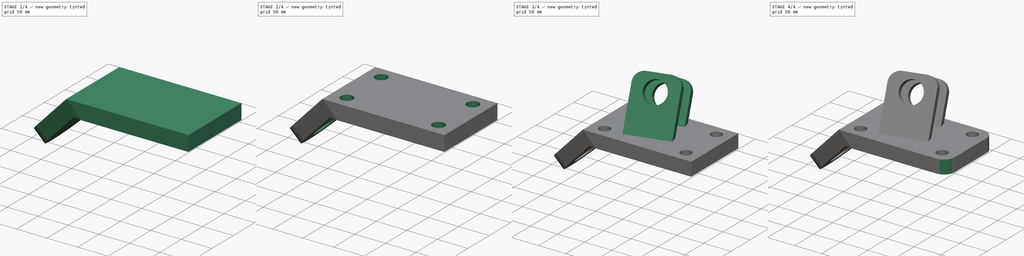
[diagram: build sequence overview — one tinted view per stage of 4, left to right]
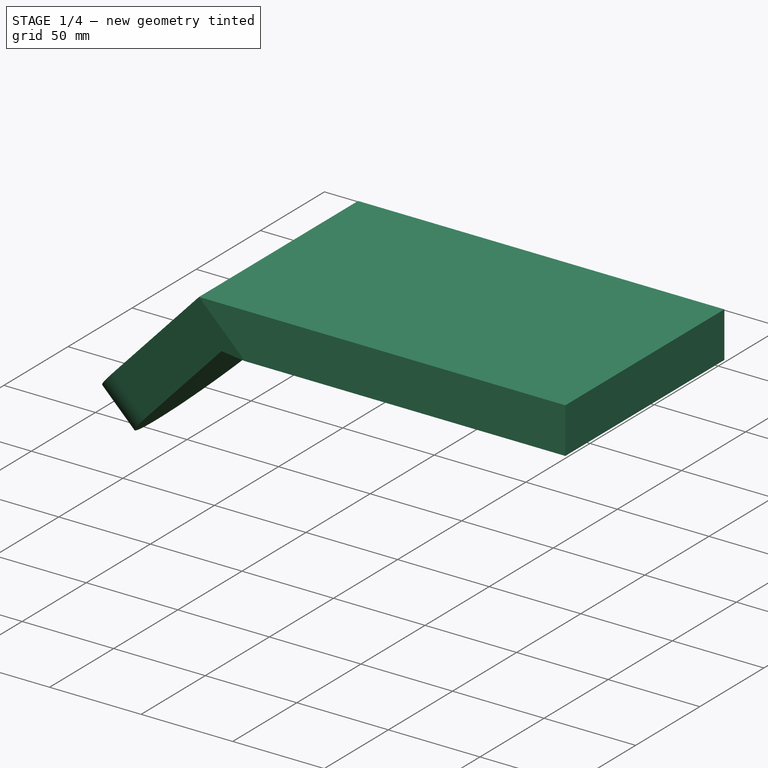
[diagram: stage 1 of 4 — iso view after this stage's code; geometry added in this stage tinted green]
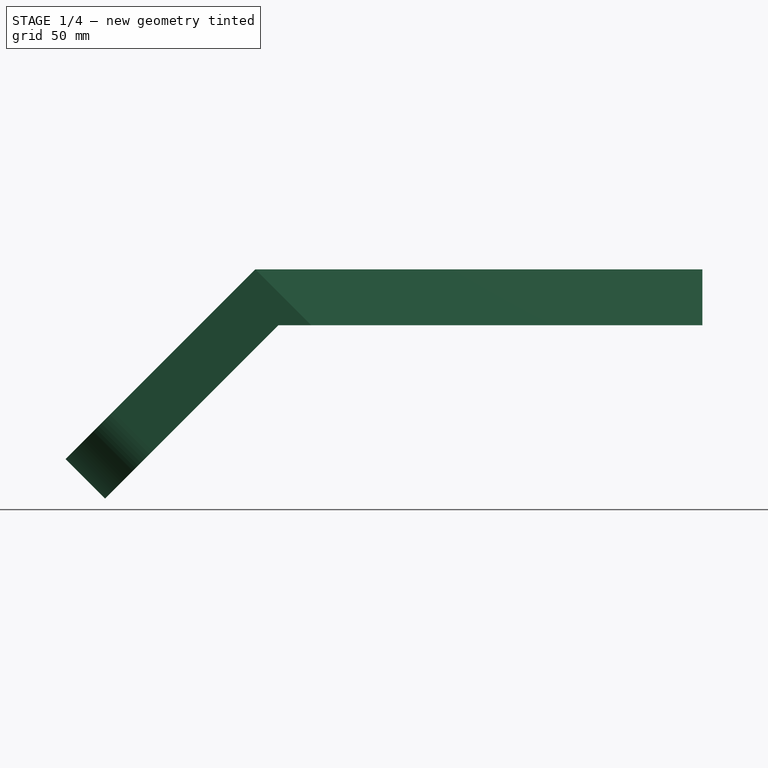
[diagram: stage 1 of 4 — front view after this stage's code; geometry added in this stage tinted green]
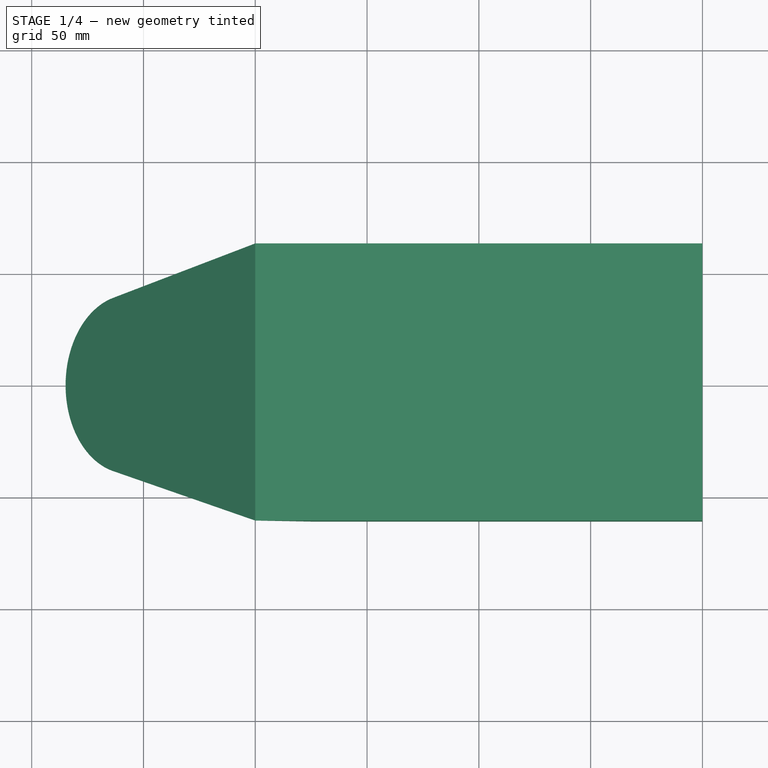
[diagram: stage 1 of 4 — top view after this stage's code; geometry added in this stage tinted green]
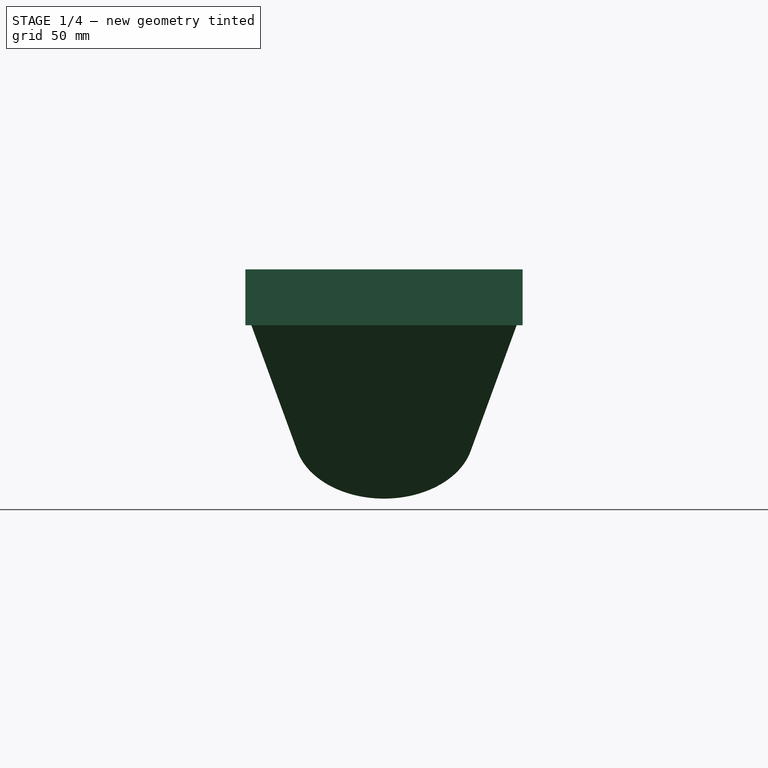
[diagram: stage 1 of 4 — right view after this stage's code; geometry added in this stage tinted green]
FCSTD DOCUMENT  (FreeCAD 0.17R9652 (Git))
Label: Advanced
License: All rights reserved
LicenseURL: http://en.wikipedia.org/wiki/All_rights_reserved
objects: Sketcher::SketchObject×8, PartDesign::Pocket×6, PartDesign::Plane×3, PartDesign::Pad×2, PartDesign::ShapeBinder×1, PartDesign::Fillet×1, PartDesign::Body×1
note: 30 computed .brp shape members not serialized (recipe doc carries the construction recipe); baked Part::Feature solids carry a one-line shape summary decoded from their .brp

FEATURE [Sketcher::SketchObject] Sketch
  MapMode = 5
  Placement = pos=(0,0,0) rot=(1,0,0;1.5708rad)
  Support = -> [XZ_Plane]
  sketch-geometry (7):
    g0: LineSegment StartX=0 StartY=0 StartZ=0 EndX=200 EndY=0 EndZ=0
    g1: LineSegment StartX=200 StartY=0 StartZ=0 EndX=200 EndY=-25 EndZ=0
    g2: LineSegment StartX=200 StartY=-25 StartZ=0 EndX=10.3553 EndY=-25 EndZ=0
    g3: LineSegment StartX=0 StartY=0 StartZ=0 EndX=-84.8528 EndY=-84.8528 EndZ=0
    g4: LineSegment StartX=-84.8528 StartY=-84.8528 StartZ=0 EndX=-67.1751 EndY=-102.53 EndZ=0
    g5: LineSegment StartX=-67.1751 StartY=-102.53 StartZ=0 EndX=10.3553 EndY=-25 EndZ=0
    g6: LineSegment [constr] StartX=0 StartY=0 StartZ=0 EndX=10.3553 EndY=-25 EndZ=0
  constraints (20):
    c: Coincident(g0,g1)
    c: Coincident(g1,g2)
    c: Horizontal(g0)
    c: Horizontal(g2)
    c: Vertical(g1)
    c: Coincident(g0,g3)
    c: Coincident(g3,g4)
    c: Coincident(g4,g5)
    c: Coincident(g5,g2)
    c: Distance(g3) = 120
    c: Perpendicular(g4,g5)
    c: Parallel(g5,g3)
    c: Coincident(g6,g2)
    c: Coincident(g0,g6)
    c: PointOnObject(g0,g-2)
    c: DistanceX(g0,g0) = 200
    c: Angle(g3,g0) = 2.35619
    c: DistanceY(g1,g1) = 25
    c: Distance(g4) = 25
    c: PointOnObject(g0,g-1)
FEATURE [PartDesign::Pad] Pad
  Length = 124
  Length2 = 100
  Midplane = true
  Placement = pos=(0,0,0) rot=(1,0,0;1.5708rad)
  Profile = -> Sketch
  Type = 0
  expr: Length = 80 + 22 * 2
FEATURE [PartDesign::Plane] DatumPlane
  MapMode = 5
  Placement = pos=(0,0,0) rot=(0,-1,0;0.785398rad)
  Support = -> [XY_Plane]
  superPlacement = pos=(0,0,0) rot=(0,-1,0;0.785398rad)
FEATURE [Sketcher::SketchObject] Sketch001
  MapMode = 5
  Placement = pos=(0,0,0) rot=(0,-1,0;0.785398rad)
  Support = -> [DatumPlane]
  sketch-geometry (7):
    g0: LineSegment StartX=-130 StartY=62 StartZ=0 EndX=0 EndY=62 EndZ=0
    g1: LineSegment [constr] StartX=0 StartY=62 StartZ=0 EndX=0 EndY=-62 EndZ=0
    g2: LineSegment StartX=0 StartY=-62 StartZ=0 EndX=-130 EndY=-62 EndZ=0
    g3: LineSegment StartX=-130 StartY=-62 StartZ=0 EndX=-130 EndY=62 EndZ=0
    g4: LineSegment StartX=0 StartY=62 StartZ=0 EndX=-90.0131 EndY=38.7265 EndZ=0
    g5: LineSegment StartX=0 StartY=-62 StartZ=0 EndX=-90.0131 EndY=-38.7265 EndZ=0
    g6: ArcOfCircle CenterX=-80 CenterY=0 CenterZ=0 NormalX=0 NormalY=0 NormalZ=1 Radius=40 StartAngle=1.82381 EndAngle=4.45937
  constraints (21):
    c: Coincident(g0,g1)
    c: Coincident(g1,g2)
    c: Coincident(g2,g3)
    c: Coincident(g3,g0)
    c: Horizontal(g0)
    c: Horizontal(g2)
    c: Vertical(g1)
    c: Vertical(g3)
    c: PointOnObject(g1,g-2)
    c: Symmetric(g0,g1,g-1)
    c: DistanceY(g3,g3) = 124
    c: DistanceX(g0,g0) = 130
    c: Coincident(g4,g0)
    c: Coincident(g5,g1)
    c: PointOnObject(g6,g-1)
    c: Coincident(g4,g6)
    c: Coincident(g5,g6)
    c: Tangent(g5,g6)
    c: Tangent(g4,g6)
    c: DistanceX(g6,g-1) = 80
    c: Radius(g6) = 40
FEATURE [PartDesign::Pocket] Pocket
  BaseFeature = -> Pad
  Length = 44
  Placement = pos=(0,0,0) rot=(1,0,0;1.5708rad)
  Profile = -> Sketch001
  Type = 1
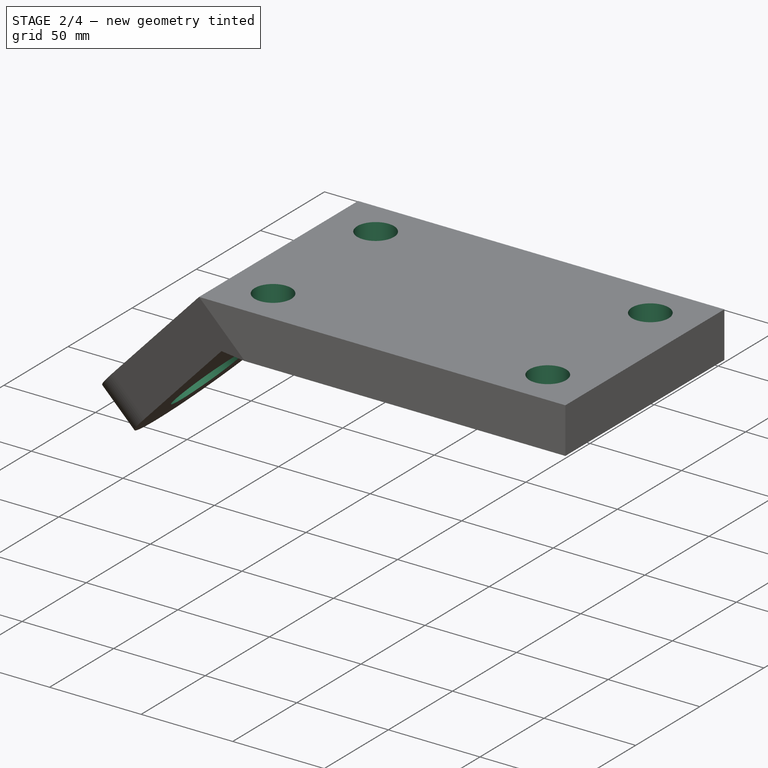
[diagram: stage 2 of 4 — iso view after this stage's code; geometry added in this stage tinted green]
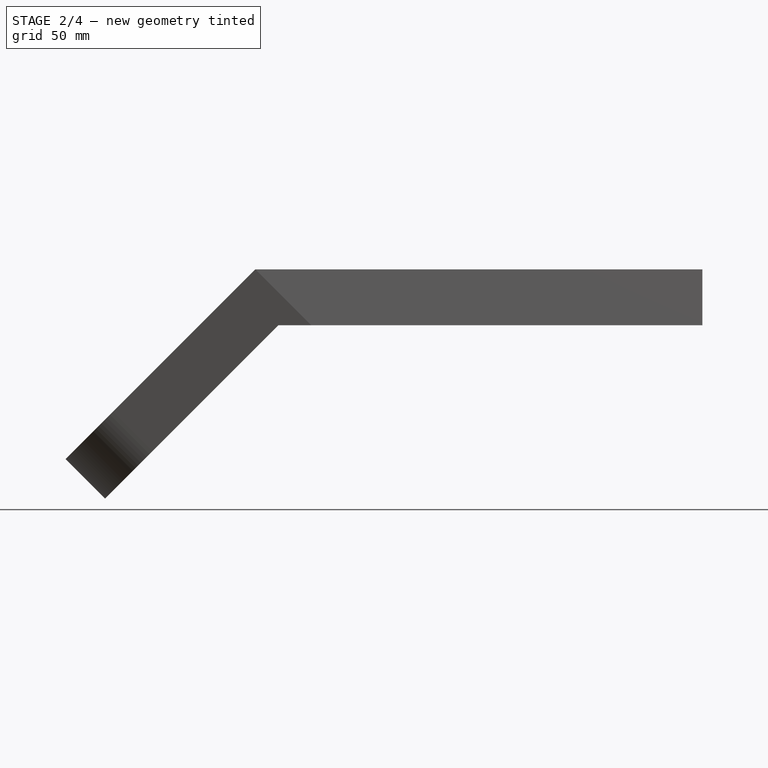
[diagram: stage 2 of 4 — front view after this stage's code; geometry added in this stage tinted green]
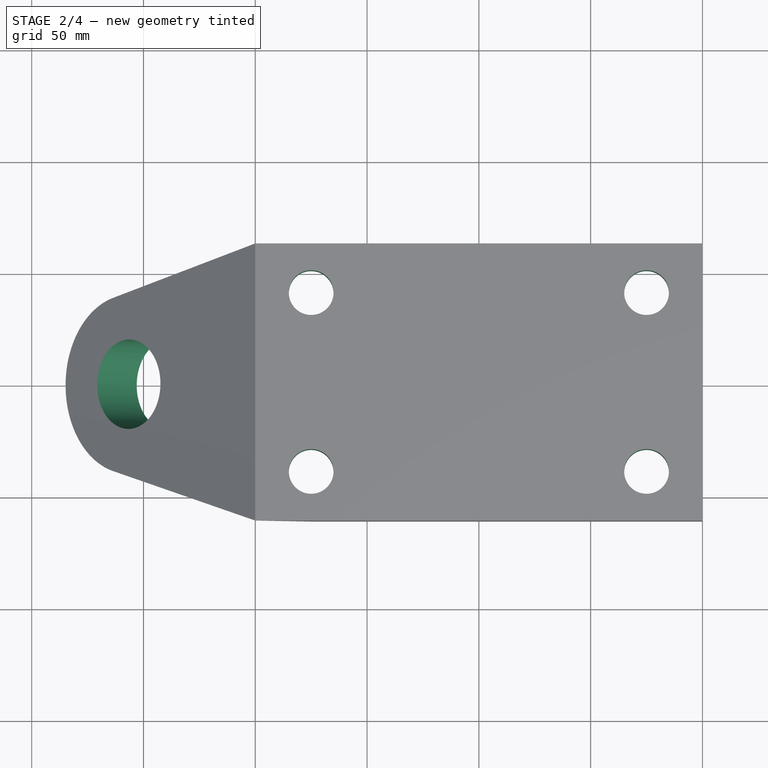
[diagram: stage 2 of 4 — top view after this stage's code; geometry added in this stage tinted green]
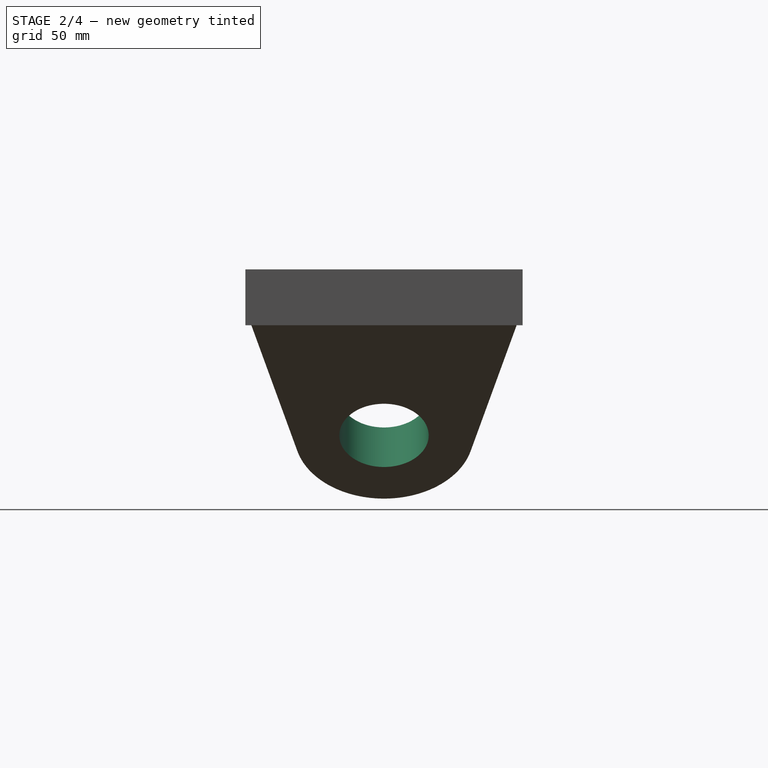
[diagram: stage 2 of 4 — right view after this stage's code; geometry added in this stage tinted green]
FEATURE [Sketcher::SketchObject] Sketch002
  MapMode = 5
  Placement = pos=(0,0,0) rot=(0,-1,0;0.785398rad)
  Support = -> [DatumPlane]
  sketch-geometry (1):
    g0: Circle CenterX=-80 CenterY=0 CenterZ=0 NormalX=0 NormalY=0 NormalZ=1 Radius=20
  constraints (3):
    c: PointOnObject(g0,g-1)
    c: DistanceX(g0,g-1) = 80
    c: Radius(g0) = 20
FEATURE [PartDesign::Pocket] Pocket001
  BaseFeature = -> Pocket
  Length = 5
  Placement = pos=(0,0,0) rot=(1,0,0;1.5708rad)
  Profile = -> Sketch002
  Type = 1
FEATURE [Sketcher::SketchObject] Sketch003
  MapMode = 5
  Support = -> [XY_Plane]
  sketch-geometry (8):
    g0: LineSegment [constr] StartX=25 StartY=40 StartZ=0 EndX=175 EndY=40 EndZ=0
    g1: LineSegment [constr] StartX=175 StartY=40 StartZ=0 EndX=175 EndY=-40 EndZ=0
    g2: LineSegment [constr] StartX=175 StartY=-40 StartZ=0 EndX=25 EndY=-40 EndZ=0
    g3: LineSegment [constr] StartX=25 StartY=-40 StartZ=0 EndX=25 EndY=40 EndZ=0
    g4: Circle CenterX=25 CenterY=40 CenterZ=0 NormalX=0 NormalY=0 NormalZ=1 Radius=10
    g5: Circle CenterX=175 CenterY=40 CenterZ=0 NormalX=0 NormalY=0 NormalZ=1 Radius=10
    g6: Circle CenterX=175 CenterY=-40 CenterZ=0 NormalX=0 NormalY=0 NormalZ=1 Radius=10
    g7: Circle CenterX=25 CenterY=-40 CenterZ=0 NormalX=0 NormalY=0 NormalZ=1 Radius=10
  constraints (20):
    c: Coincident(g0,g1)
    c: Coincident(g1,g2)
    c: Coincident(g2,g3)
    c: Coincident(g3,g0)
    c: Horizontal(g0)
    c: Horizontal(g2)
    c: Vertical(g1)
    c: Vertical(g3)
    c: DistanceY(g1,g1) = 80
    c: Symmetric(g0,g1,g-1)
    c: DistanceX(g0,g0) = 150
    c: DistanceX(g0) = 25
    c: Coincident(g2,g7)
    c: Coincident(g0,g4)
    c: Coincident(g0,g5)
    c: Coincident(g6,g1)
    c: Equal(g6,g5)
    c: Equal(g5,g4)
    c: Equal(g4,g7)
    c: Radius(g4) = 10
FEATURE [PartDesign::Pocket] Pocket002
  BaseFeature = -> Pocket001
  Length = 5
  Midplane = true
  Placement = pos=(0,0,0) rot=(1,0,0;1.5708rad)
  Profile = -> Sketch003
  Type = 1
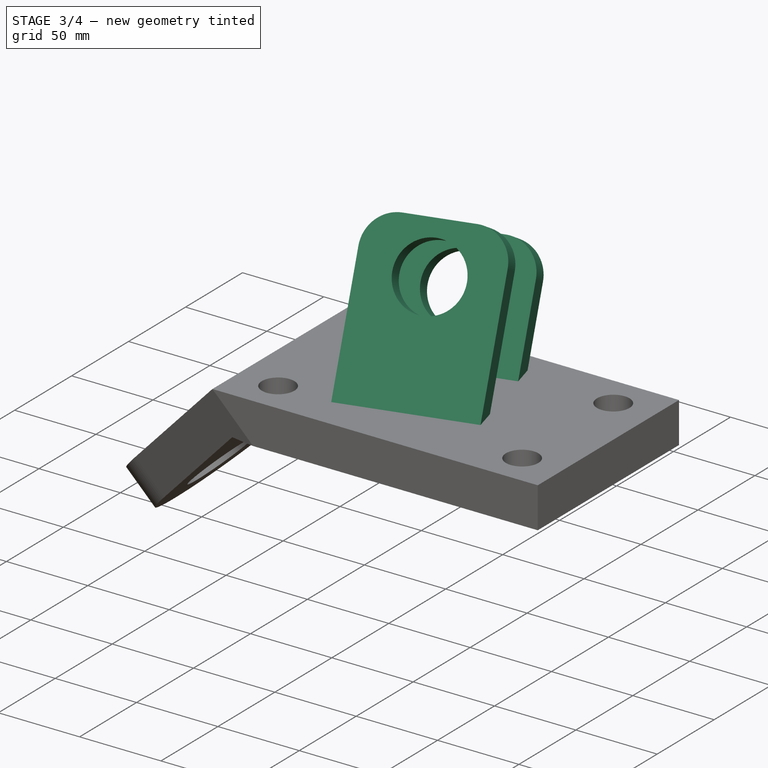
[diagram: stage 3 of 4 — iso view after this stage's code; geometry added in this stage tinted green]
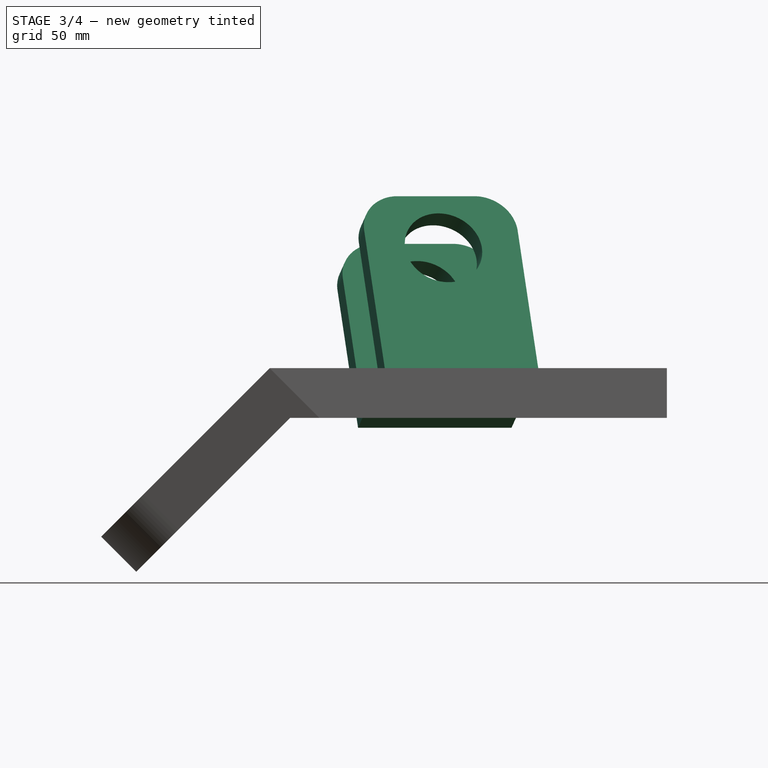
[diagram: stage 3 of 4 — front view after this stage's code; geometry added in this stage tinted green]
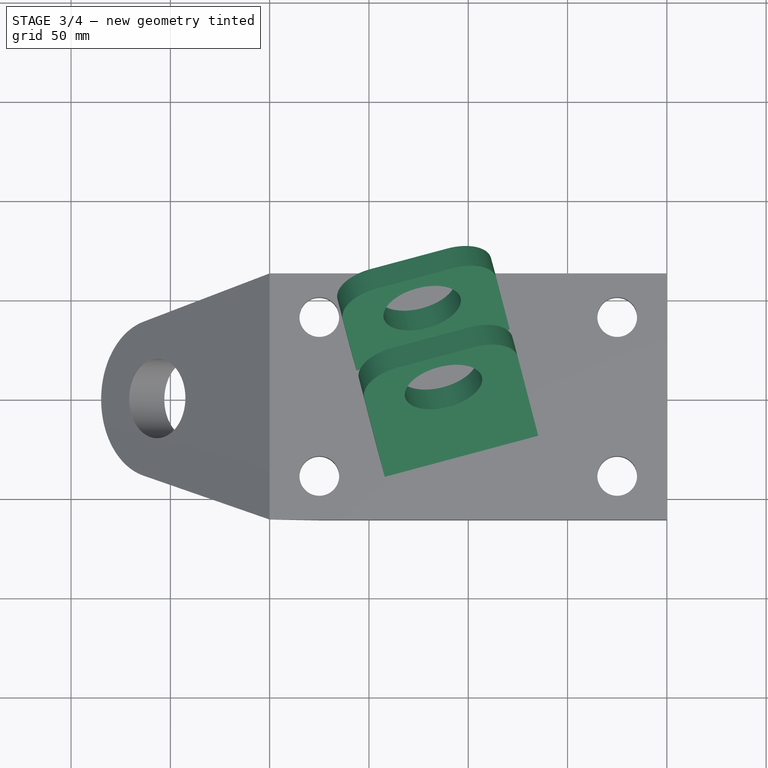
[diagram: stage 3 of 4 — top view after this stage's code; geometry added in this stage tinted green]
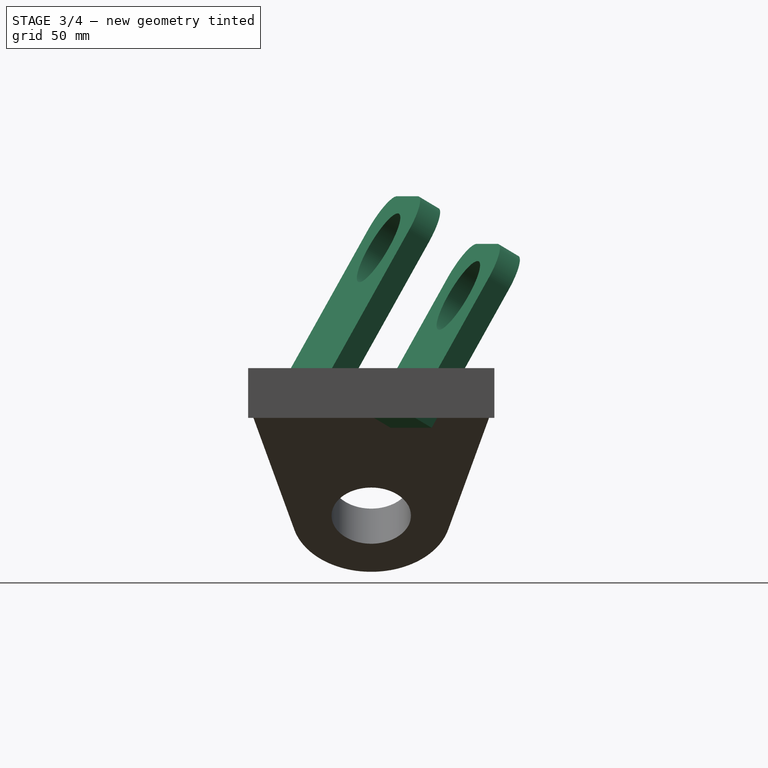
[diagram: stage 3 of 4 — right view after this stage's code; geometry added in this stage tinted green]
FEATURE [PartDesign::Plane] DatumPlane001
  MapMode = 5
  Placement = pos=(0,-56,0) rot=(0.96704,0.127313,0.220513;1.07646rad)
  Support = -> [XZ_Plane]
  superPlacement = pos=(0,0,56) rot=(-0.891316,0.437934,0.117344;0.584055rad)
FEATURE [Sketcher::SketchObject] Sketch004
  MapMode = 5
  Placement = pos=(0,-56,0) rot=(0.96704,0.127313,0.220513;1.07646rad)
  Support = -> [DatumPlane001]
  sketch-geometry (7):
    g0: LineSegment StartX=140 StartY=79.9999 StartZ=0 EndX=140 EndY=0 EndZ=0
    g1: LineSegment StartX=140 StartY=0 StartZ=0 EndX=60 EndY=0 EndZ=0
    g2: LineSegment StartX=60 StartY=0 StartZ=0 EndX=60 EndY=80 EndZ=0
    g3: LineSegment [constr] StartX=0 StartY=0 StartZ=0 EndX=200 EndY=0 EndZ=0
    g4: LineSegment StartX=80 StartY=100 StartZ=0 EndX=120 EndY=100 EndZ=0
    g5: ArcOfCircle CenterX=80 CenterY=80 CenterZ=0 NormalX=0 NormalY=0 NormalZ=1 Radius=20 StartAngle=1.5708 EndAngle=3.14159
    g6: ArcOfCircle CenterX=120 CenterY=80 CenterZ=0 NormalX=0 NormalY=0 NormalZ=1 Radius=20 StartAngle=6.28318 EndAngle=7.85398
  constraints (23):
    c: Coincident(g0,g1)
    c: Coincident(g1,g2)
    c: Horizontal(g1)
    c: Vertical(g0)
    c: Vertical(g2)
    c: Coincident(g3,g-1)
    c: Horizontal(g3)
    c: DistanceX(g3,g3) = 200
    c: PointOnObject(g1,g3)
    c: DistanceX(g2) = 60
    c: Horizontal(g4)
    c: DistanceY(g4) = 100
    c: DistanceX(g1,g1) = 80
    c: Coincident(g0,g6)
    c: Coincident(g4,g6)
    c: Coincident(g5,g4)
    c: Coincident(g2,g5)
    c: Radius(g6) = 20
    c: Equal(g6,g5)
    c: Tangent(g4,g5)
    c: Tangent(g5,g2)
    c: Tangent(g6,g4)
    c: Tangent(g6,g0)
FEATURE [PartDesign::Pad] Pad001
  BaseFeature = -> Pocket002
  Length = 60
  Length2 = 100
  Placement = pos=(0,0,0) rot=(1,0,0;1.5708rad)
  Profile = -> Sketch004
  Reversed = true
  Type = 0
  expr: Length = 36 + 12 * 2
FEATURE [Sketcher::SketchObject] Sketch005
  MapMode = 5
  Placement = pos=(0,-56,0) rot=(0.96704,0.127313,0.220513;1.07646rad)
  Support = -> [DatumPlane001]
  sketch-geometry (1):
    g0: Circle CenterX=100 CenterY=70 CenterZ=0 NormalX=0 NormalY=0 NormalZ=1 Radius=20
  constraints (3):
    c: Radius(g0) = 20
    c: DistanceX(g0) = 100
    c: DistanceY(g0) = 70
FEATURE [PartDesign::Pocket] Pocket003
  BaseFeature = -> Pad001
  Length = 60
  Placement = pos=(0,0,0) rot=(1,0,0;1.5708rad)
  Profile = -> Sketch005
  Type = 0
FEATURE [PartDesign::Plane] DatumPlane002
  MapMode = 5
  Placement = pos=(0,0,0) rot=(0.476905,0.621515,0.621515;2.25159rad)
  Support = -> [YZ_Plane]
  superPlacement = pos=(0,0,0) rot=(0,1,0;0.261799rad)
FEATURE [Sketcher::SketchObject] Sketch007
  MapMode = 5
  Placement = pos=(0,0,0) rot=(1,0,0;1.5708rad)
  Support = -> [XZ_Plane]
  sketch-geometry (4):
    g0: LineSegment StartX=15 StartY=-25 StartZ=0 EndX=165 EndY=-25 EndZ=0
    g1: LineSegment StartX=165 StartY=-25 StartZ=0 EndX=165 EndY=-45 EndZ=0
    g2: LineSegment StartX=165 StartY=-45 StartZ=0 EndX=15 EndY=-45 EndZ=0
    g3: LineSegment StartX=15 StartY=-45 StartZ=0 EndX=15 EndY=-25 EndZ=0
  constraints (12):
    c: Coincident(g0,g1)
    c: Coincident(g1,g2)
    c: Coincident(g2,g3)
    c: Coincident(g3,g0)
    c: Horizontal(g0)
    c: Horizontal(g2)
    c: Vertical(g1)
    c: Vertical(g3)
    c: DistanceY(g0,g-1) = 25
    c: DistanceX(g0) = 15
    c: DistanceY(g3,g3) = 20
    c: DistanceX(g2,g2) = 150
FEATURE [PartDesign::ShapeBinder] ShapeBinder
  Placement = pos=(0,0,0) rot=(1,0,0;1.5708rad)
  Support = -> [Pocket003]
FEATURE [Sketcher::SketchObject] Sketch006
  ExternalGeometry = -> [ShapeBinder]
  MapMode = 5
  Placement = pos=(0,0,0) rot=(0.476905,0.621515,0.621515;2.25159rad)
  Support = -> [DatumPlane002]
  sketch-geometry (6):
    g0: LineSegment StartX=-40.2354 StartY=0 StartZ=0 EndX=6.30046 EndY=80.6025 EndZ=0
    g1: LineSegment StartX=6.30046 StartY=80.6025 StartZ=0 EndX=37.4774 EndY=62.6025 EndZ=0
    g2: LineSegment StartX=37.4774 StartY=62.6025 StartZ=0 EndX=1.33378 EndY=0 EndZ=0
    g3: LineSegment StartX=1.33378 StartY=0 StartZ=0 EndX=-40.2354 EndY=0 EndZ=0
    g4: LineSegment [constr] StartX=-54.0918 StartY=0 StartZ=0 EndX=-4.09185 EndY=86.6025 EndZ=0
    g5: LineSegment [constr] StartX=-4.09185 StartY=86.6025 StartZ=0 EndX=6.30046 EndY=80.6025 EndZ=0
  constraints (17):
    c: PointOnObject(g0,g-1)
    c: Coincident(g0,g1)
    c: Coincident(g1,g2)
    c: Coincident(g2,g3)
    c: Coincident(g3,g0)
    c: Parallel(g2,g0)
    c: Perpendicular(g1,g2)
    c: Coincident(g4,g5)
    c: Coincident(g5,g0)
    c: Distance(g5) = 12
    c: Perpendicular(g4,g5)
    c: Horizontal(g3)
    c: Distance(g1) = 36
    c: PointOnObject(g4,g-1)
    c: Angle(g-1,g0) = 1.0472
    c: Parallel(g0,g4)
    c: Coincident(g4,g-3)
FEATURE [PartDesign::Pocket] Pocket004
  BaseFeature = -> Pocket003
  Length = 5
  Placement = pos=(0,0,0) rot=(1,0,0;1.5708rad)
  Profile = -> Sketch006
  Reversed = true
  Type = 1
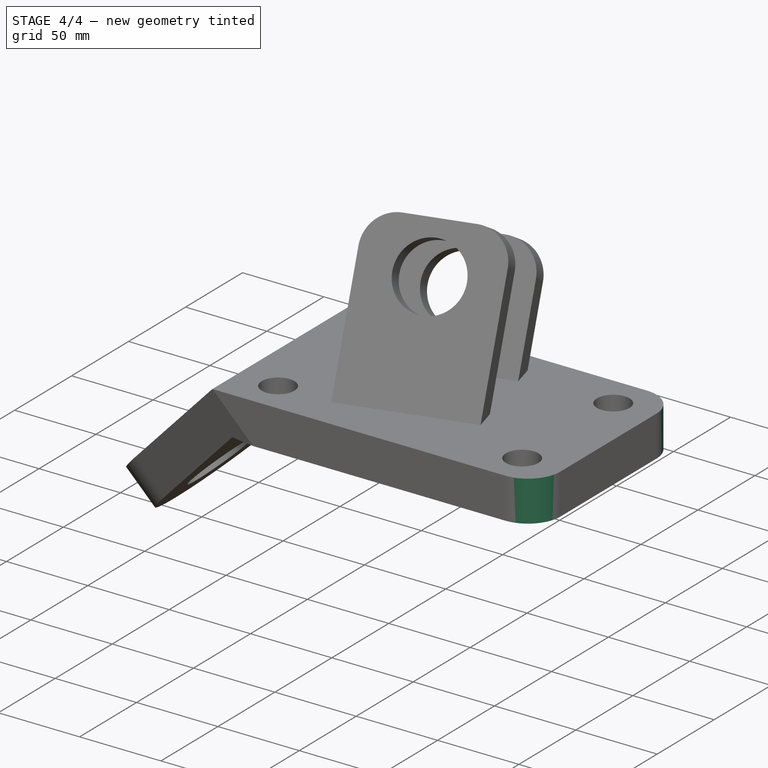
[diagram: stage 4 of 4 — iso view after this stage's code; geometry added in this stage tinted green]
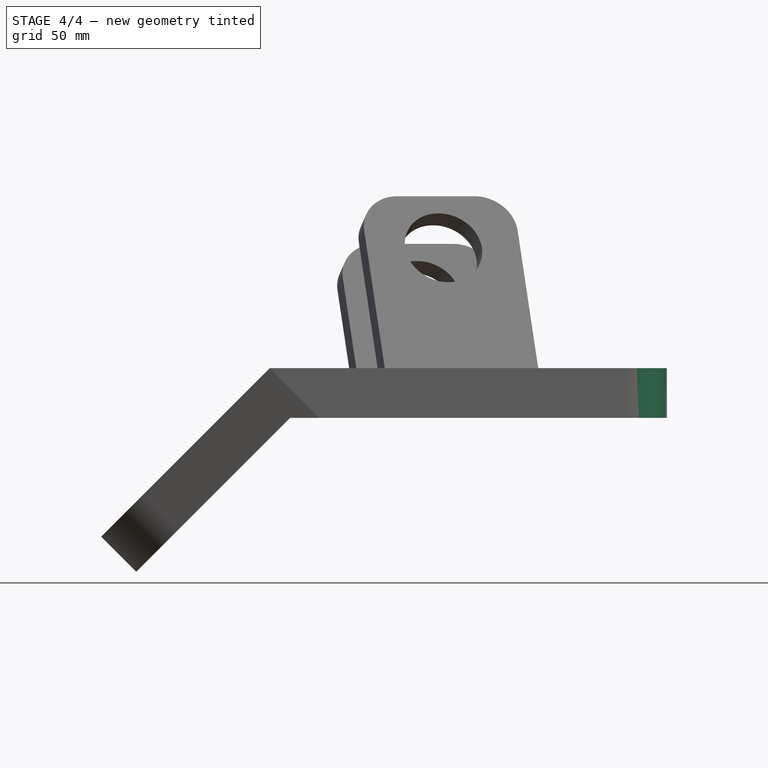
[diagram: stage 4 of 4 — front view after this stage's code; geometry added in this stage tinted green]
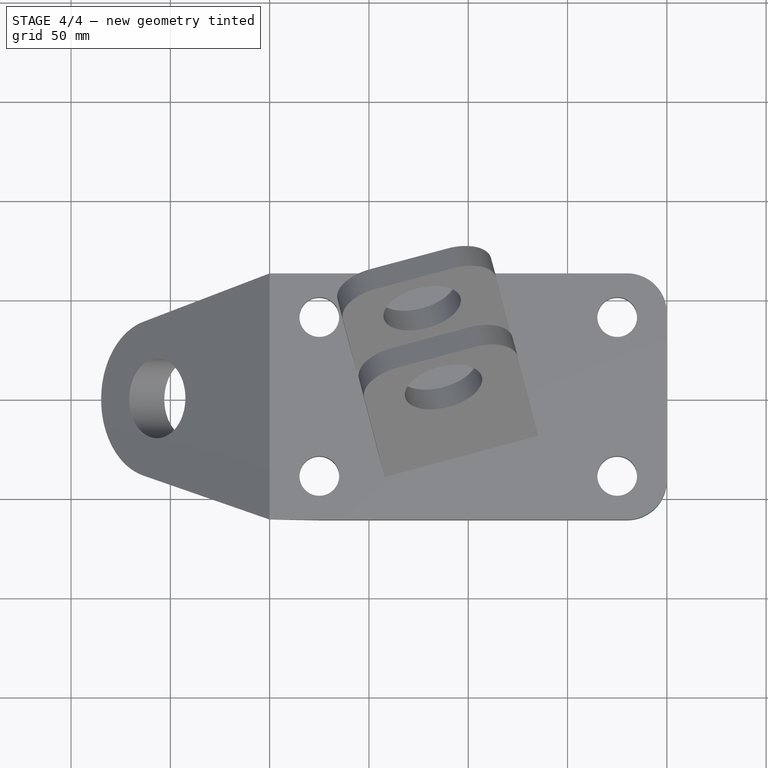
[diagram: stage 4 of 4 — top view after this stage's code; geometry added in this stage tinted green]
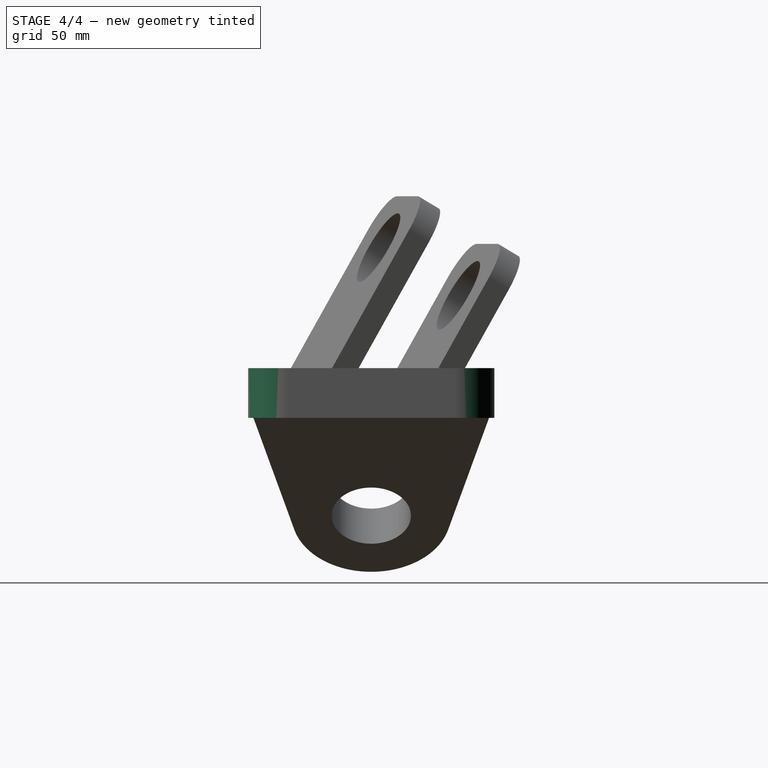
[diagram: stage 4 of 4 — right view after this stage's code; geometry added in this stage tinted green]
FEATURE [PartDesign::Pocket] Pocket005
  BaseFeature = -> Pocket004
  Length = 39
  Placement = pos=(0,0,0) rot=(1,0,0;1.5708rad)
  Profile = -> Sketch007
  Type = 1
FEATURE [PartDesign::Fillet] Fillet
  Base = -> Pocket005 [Edge42,Edge38]
  BaseFeature = -> Pocket005
  Placement = pos=(0,0,0) rot=(1,0,0;1.5708rad)
  Radius = 20
FEATURE [PartDesign::Body] Body
  Group = -> [Sketch,Pad,DatumPlane,Sketch001,Pocket,Sketch002,Pocket001,Sketch003,Pocket002,DatumPlane001,Sketch004,Pad001,Sketch005,Pocket003,DatumPlane002,Sketch006,Pocket004,Sketch007,Pocket005,ShapeBinder,Fillet]
  Origin = -> BodyOrigin
  Tip = -> Fillet
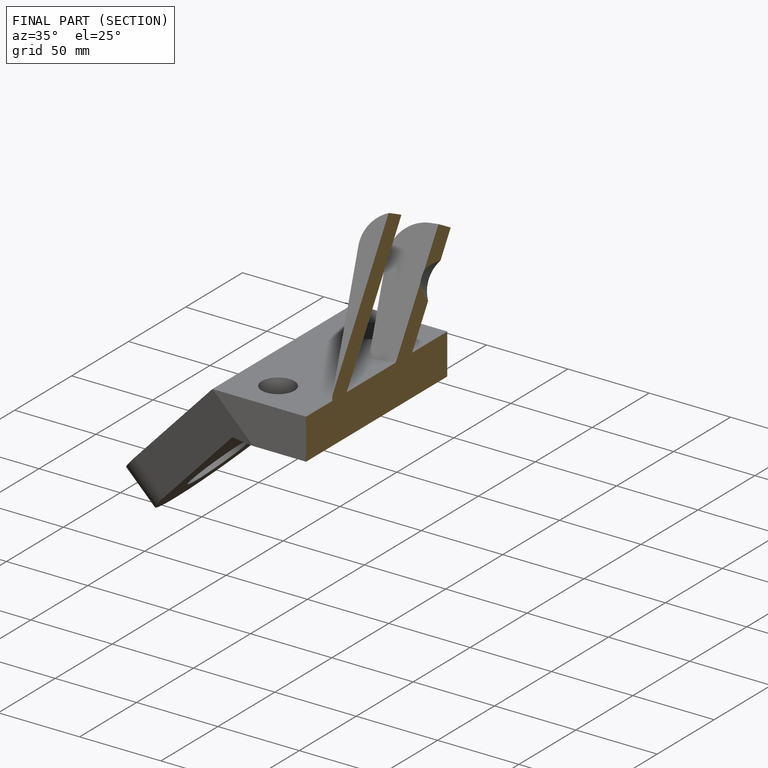
[diagram: finished part — half-section view (interior)]
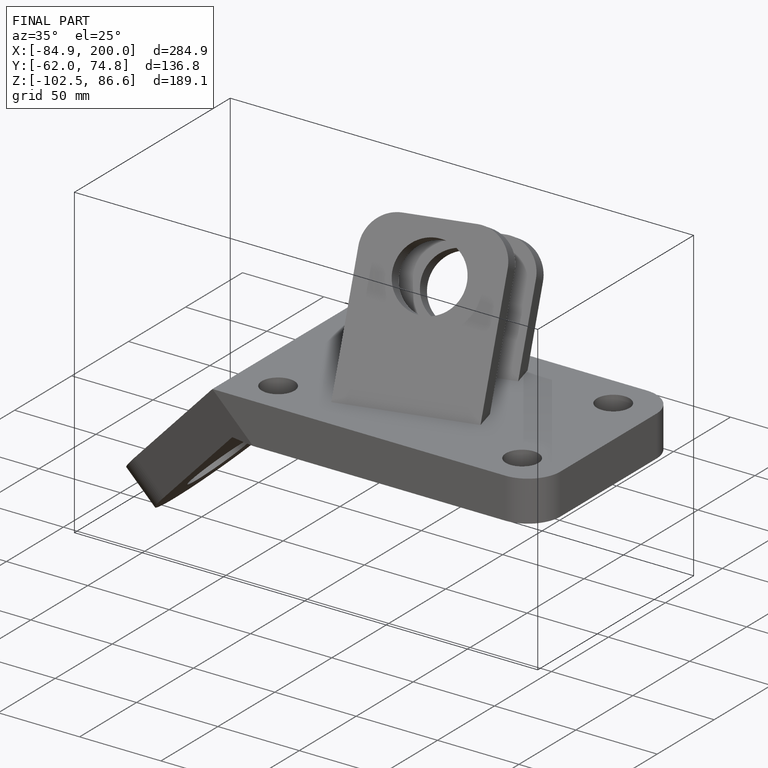
[diagram: finished part — iso view with bounding-box wireframe]
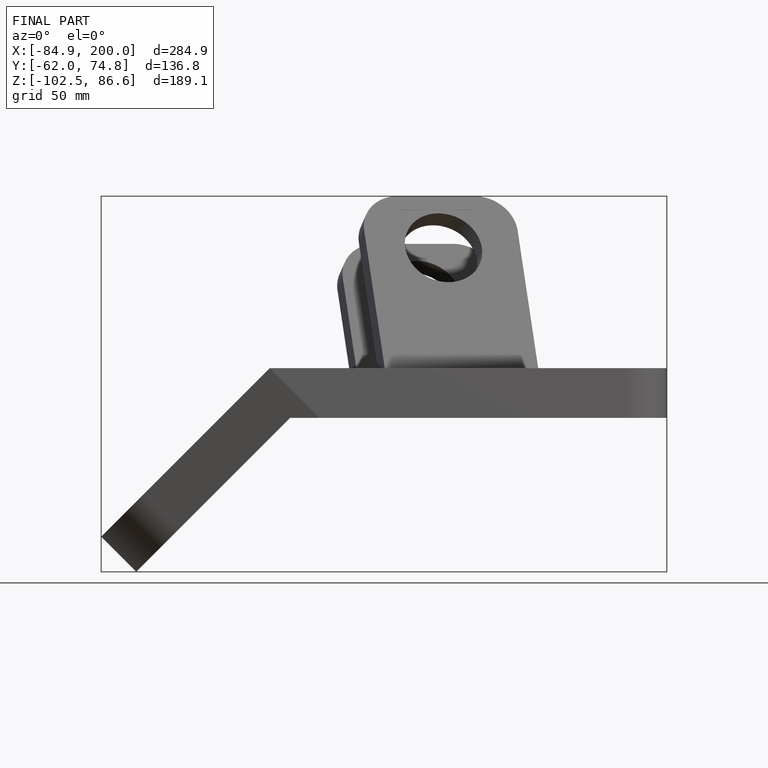
[diagram: finished part — front view with bounding-box wireframe]
